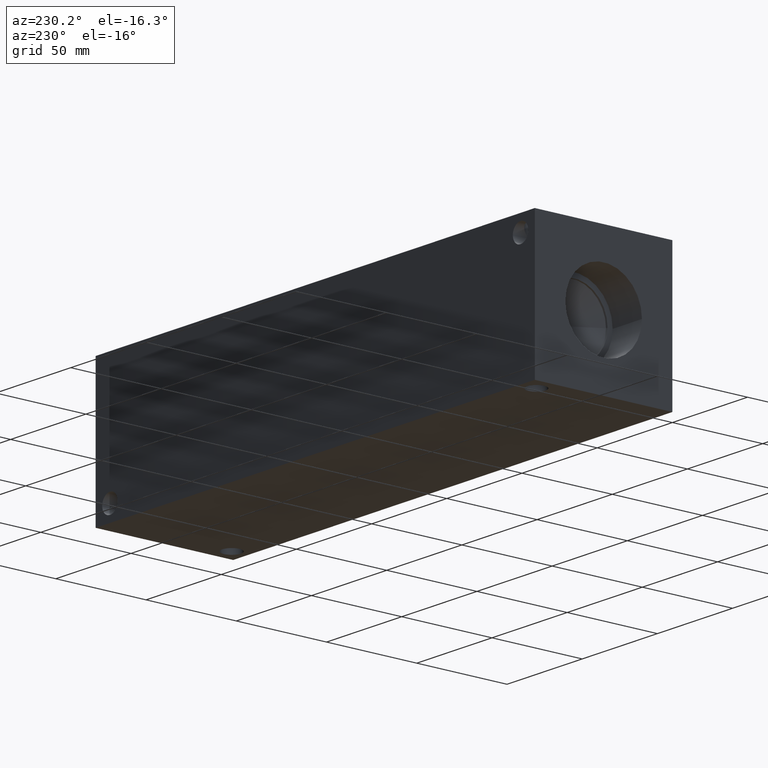
[diagram: clean part render]
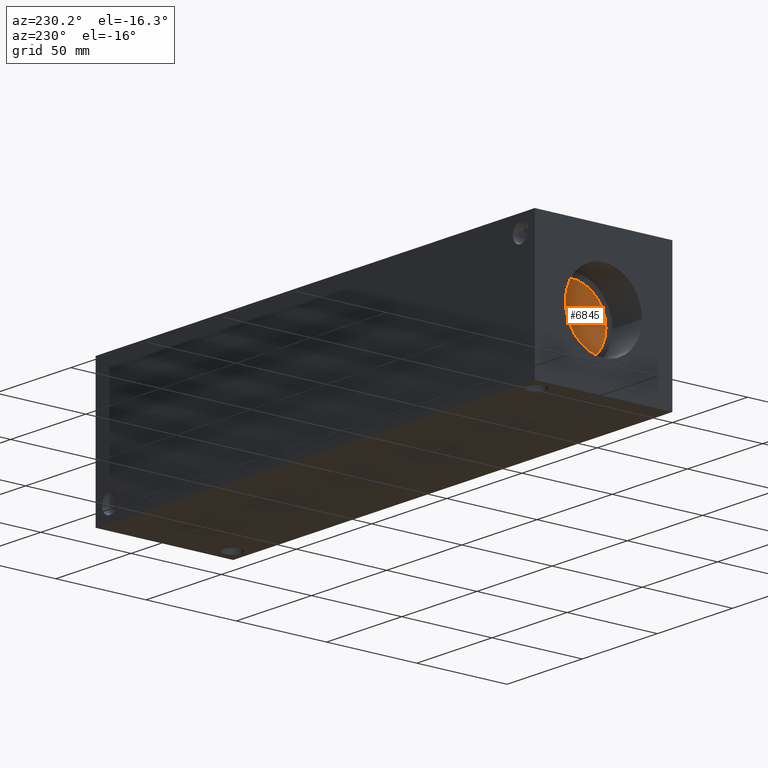
[diagram: same view with one face highlighted and labeled with its STEP entity id]
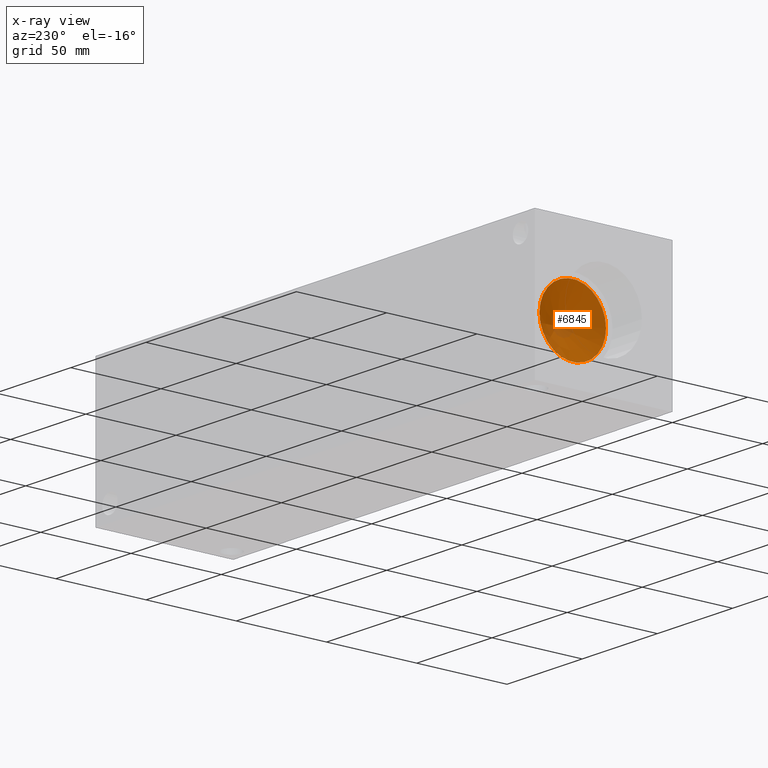
[diagram: x-ray of the same camera — body ghosted, the highlighted face saturated]
A machine part, auxiliary view. The second image highlights one B-rep face of the part: STEP entity #6845.
The next image is the same camera in x-ray: the body ghosted, the highlighted face saturated — about 10% of this face is hidden behind the body in this view.
In plain terms, the highlighted conical surface has half-angle 60 deg.
Its self-contained STEP definition (entity closure, byte-faithful):
#41=CONICAL_SURFACE('',#7119,9.22655,1.0471975511966);
#62=CIRCLE('',#7120,18.4531);
#63=CIRCLE('',#7121,18.4531);
#763=FACE_OUTER_BOUND('',#1143,.T.);
#1143=EDGE_LOOP('',(#5850,#5851,#5852,#5853));
#1838=LINE('',#11593,#2519);
#2519=VECTOR('',#8306,9.22655);
#3137=VERTEX_POINT('',#11589);
#3138=VERTEX_POINT('',#11590);
#3139=VERTEX_POINT('',#11592);
#4055=EDGE_CURVE('',#3137,#3138,#62,.T.);
#4056=EDGE_CURVE('',#3138,#3139,#1838,.T.);
#4057=EDGE_CURVE('',#3138,#3137,#63,.T.);
#5850=ORIENTED_EDGE('',*,*,#4055,.T.);
#5851=ORIENTED_EDGE('',*,*,#4056,.T.);
#5852=ORIENTED_EDGE('',*,*,#4056,.F.);
#5853=ORIENTED_EDGE('',*,*,#4057,.T.);
#6845=ADVANCED_FACE('',(#763),#41,.F.);
#7119=AXIS2_PLACEMENT_3D('',#11588,#8302,#8303);
#7120=AXIS2_PLACEMENT_3D('',#11591,#8304,#8305);
#7121=AXIS2_PLACEMENT_3D('',#11594,#8307,#8308);
#8302=DIRECTION('center_axis',(-1.,0.,0.));
#8303=DIRECTION('ref_axis',(0.,1.,0.));
#8304=DIRECTION('center_axis',(-1.,0.,0.));
#8305=DIRECTION('ref_axis',(0.,1.,0.));
#8306=DIRECTION('',(0.5,0.866025403784439,-1.06057523872491E-16));
#8307=DIRECTION('center_axis',(-1.,0.,0.));
#8308=DIRECTION('ref_axis',(0.,1.,0.));
#11588=CARTESIAN_POINT('Origin',(25.8995411261915,38.1,38.1));
#11589=CARTESIAN_POINT('',(20.57259,56.5531,38.1));
#11590=CARTESIAN_POINT('',(20.57259,19.6469,38.1));
#11591=CARTESIAN_POINT('Origin',(20.57259,38.1,38.1));
#11592=CARTESIAN_POINT('',(31.2264922523831,38.1,38.1));
#11593=CARTESIAN_POINT('',(25.8995411261915,28.87345,38.1));
#11594=CARTESIAN_POINT('Origin',(20.57259,38.1,38.1));